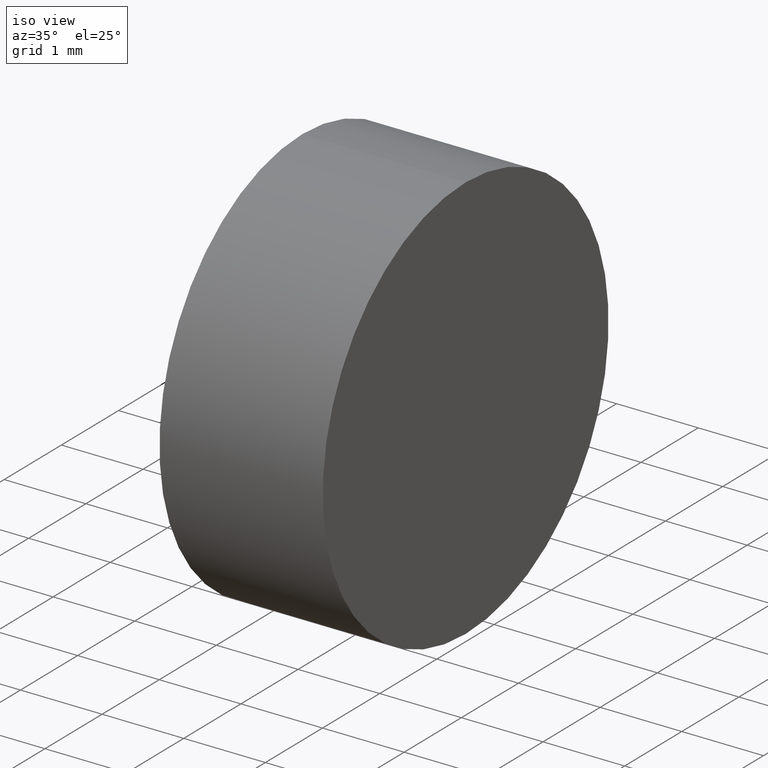
[diagram: clean part render]
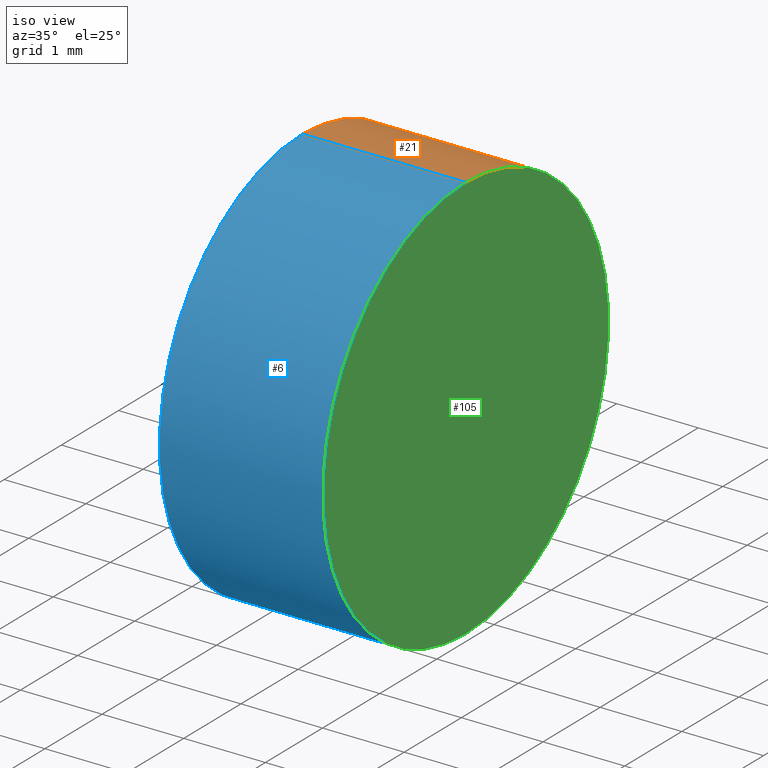
[diagram: same view with three faces highlighted in distinct colors, each labeled with its STEP entity id]
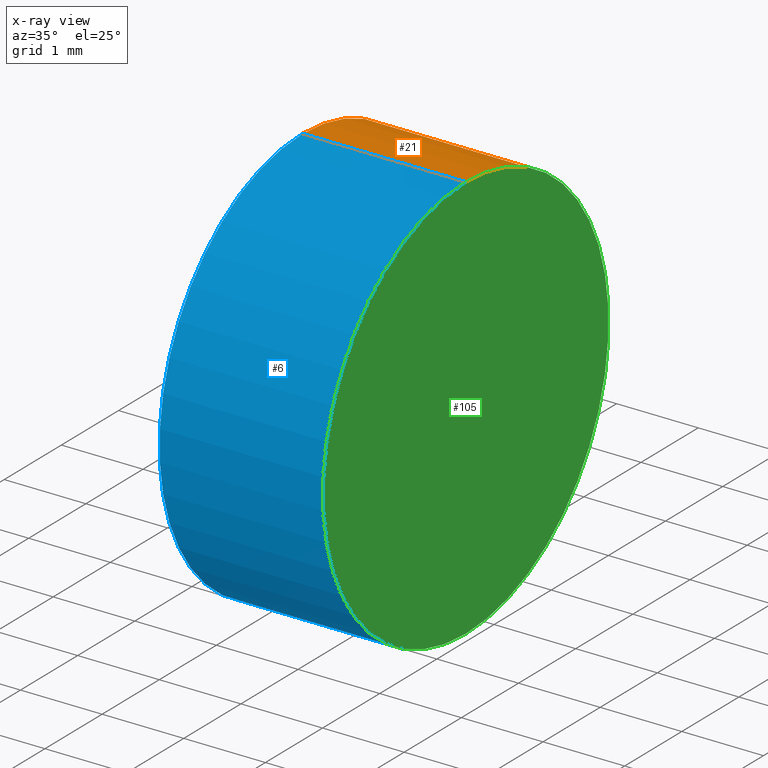
[diagram: x-ray of the same camera — body ghosted, the three highlighted faces saturated]
A machine part, iso view with three faces highlighted in distinct colors.
The next image is the same camera in x-ray (body ghosted, the three faces saturated) — at least one of them is partly hidden behind the body in this view.
Their STEP definitions:

[orange] entity #21 — the highlighted cylindrical surface (partial cylindrical patch) has radius 2.5 mm, axis along (-1, -0, -0).
#5 = DIRECTION ( 'NONE',  ( -1.000000000000000000, -0.0000000000000000000, -0.0000000000000000000 ) ) ;
#9 = EDGE_LOOP ( 'NONE', ( #76, #65, #67, #57 ) ) ;
#12 = DIRECTION ( 'NONE',  ( -1.000000000000000000, -0.0000000000000000000, -0.0000000000000000000 ) ) ;
#16 = CARTESIAN_POINT ( 'NONE',  ( 52.03142809851220100, 15.45863586980308400, 0.0000000000000000000 ) ) ;
#17 = DIRECTION ( 'NONE',  ( -1.000000000000000000, -0.0000000000000000000, -0.0000000000000000000 ) ) ;
#18 = VECTOR ( 'NONE', #133, 1000.000000000000000 ) ;
#20 = CIRCLE ( 'NONE', #85, 2.499999999999996900 ) ;
#21 = ADVANCED_FACE ( 'NONE', ( #23 ), #72, .T. ) ;
#23 = FACE_OUTER_BOUND ( 'NONE', #9, .T. ) ;
#25 = VECTOR ( 'NONE', #5, 1000.000000000000000 ) ;
#30 = CARTESIAN_POINT ( 'NONE',  ( 50.80016039852321100, 15.45863586980308400, 2.499999999999996900 ) ) ;
#31 = DIRECTION ( 'NONE',  ( 0.0000000000000000000, 0.0000000000000000000, 1.000000000000000000 ) ) ;
#39 = VERTEX_POINT ( 'NONE', #94 ) ;
#49 = CARTESIAN_POINT ( 'NONE',  ( 50.80016039852321100, 15.45863586980308400, -2.499999999999996900 ) ) ;
#54 = CARTESIAN_POINT ( 'NONE',  ( 54.03142809851220800, 15.45863586980308400, 0.0000000000000000000 ) ) ;
#57 = ORIENTED_EDGE ( 'NONE', *, *, #116, .F. ) ;
#61 = EDGE_CURVE ( 'NONE', #121, #91, #20, .T. ) ;
#62 = DIRECTION ( 'NONE',  ( 0.0000000000000000000, 0.0000000000000000000, 1.000000000000000000 ) ) ;
#65 = ORIENTED_EDGE ( 'NONE', *, *, #66, .T. ) ;
#66 = EDGE_CURVE ( 'NONE', #39, #91, #70, .T. ) ;
#67 = ORIENTED_EDGE ( 'NONE', *, *, #61, .F. ) ;
#69 = EDGE_CURVE ( 'NONE', #123, #39, #127, .T. ) ;
#70 = LINE ( 'NONE', #49, #18 ) ;
#72 = CYLINDRICAL_SURFACE ( 'NONE', #113, 2.499999999999996900 ) ;
#75 = CARTESIAN_POINT ( 'NONE',  ( 52.03142809851220100, 15.45863586980308400, 2.499999999999996900 ) ) ;
#76 = ORIENTED_EDGE ( 'NONE', *, *, #69, .T. ) ;
#80 = LINE ( 'NONE', #30, #25 ) ;
#82 = DIRECTION ( 'NONE',  ( -1.000000000000000000, -0.0000000000000000000, -0.0000000000000000000 ) ) ;
#85 = AXIS2_PLACEMENT_3D ( 'NONE', #16, #17, #100 ) ;
#91 = VERTEX_POINT ( 'NONE', #122 ) ;
#94 = CARTESIAN_POINT ( 'NONE',  ( 54.03142809851220800, 15.45863586980308400, -2.499999999999996900 ) ) ;
#100 = DIRECTION ( 'NONE',  ( 0.0000000000000000000, 0.0000000000000000000, 1.000000000000000000 ) ) ;
#106 = CARTESIAN_POINT ( 'NONE',  ( 50.80016039852321100, 15.45863586980308400, 0.0000000000000000000 ) ) ;
#109 = AXIS2_PLACEMENT_3D ( 'NONE', #54, #12, #62 ) ;
#112 = CARTESIAN_POINT ( 'NONE',  ( 54.03142809851220800, 15.45863586980308400, 2.499999999999996900 ) ) ;
#113 = AXIS2_PLACEMENT_3D ( 'NONE', #106, #82, #31 ) ;
#116 = EDGE_CURVE ( 'NONE', #123, #121, #80, .T. ) ;
#121 = VERTEX_POINT ( 'NONE', #75 ) ;
#122 = CARTESIAN_POINT ( 'NONE',  ( 52.03142809851220100, 15.45863586980308400, -2.499999999999996900 ) ) ;
#123 = VERTEX_POINT ( 'NONE', #112 ) ;
#127 = CIRCLE ( 'NONE', #109, 2.499999999999996900 ) ;
#133 = DIRECTION ( 'NONE',  ( -1.000000000000000000, -0.0000000000000000000, -0.0000000000000000000 ) ) ;

[blue] entity #6 — the highlighted cylindrical surface (partial cylindrical patch) has radius 2.5 mm, axis along (-1, -0, -0).
#5 = DIRECTION ( 'NONE',  ( -1.000000000000000000, -0.0000000000000000000, -0.0000000000000000000 ) ) ;
#6 = ADVANCED_FACE ( 'NONE', ( #42 ), #102, .T. ) ;
#7 = ORIENTED_EDGE ( 'NONE', *, *, #40, .T. ) ;
#14 = ORIENTED_EDGE ( 'NONE', *, *, #116, .T. ) ;
#18 = VECTOR ( 'NONE', #133, 1000.000000000000000 ) ;
#22 = CARTESIAN_POINT ( 'NONE',  ( 54.03142809851220800, 15.45863586980308400, 0.0000000000000000000 ) ) ;
#25 = VECTOR ( 'NONE', #5, 1000.000000000000000 ) ;
#27 = ORIENTED_EDGE ( 'NONE', *, *, #93, .F. ) ;
#29 = DIRECTION ( 'NONE',  ( -1.000000000000000000, -0.0000000000000000000, -0.0000000000000000000 ) ) ;
#30 = CARTESIAN_POINT ( 'NONE',  ( 50.80016039852321100, 15.45863586980308400, 2.499999999999996900 ) ) ;
#32 = DIRECTION ( 'NONE',  ( 0.0000000000000000000, 0.0000000000000000000, 1.000000000000000000 ) ) ;
#39 = VERTEX_POINT ( 'NONE', #94 ) ;
#40 = EDGE_CURVE ( 'NONE', #39, #123, #50, .T. ) ;
#41 = CARTESIAN_POINT ( 'NONE',  ( 50.80016039852321100, 15.45863586980308400, 0.0000000000000000000 ) ) ;
#42 = FACE_OUTER_BOUND ( 'NONE', #104, .T. ) ;
#49 = CARTESIAN_POINT ( 'NONE',  ( 50.80016039852321100, 15.45863586980308400, -2.499999999999996900 ) ) ;
#50 = CIRCLE ( 'NONE', #101, 2.499999999999996900 ) ;
#51 = ORIENTED_EDGE ( 'NONE', *, *, #66, .F. ) ;
#58 = DIRECTION ( 'NONE',  ( 0.0000000000000000000, 0.0000000000000000000, 1.000000000000000000 ) ) ;
#66 = EDGE_CURVE ( 'NONE', #39, #91, #70, .T. ) ;
#70 = LINE ( 'NONE', #49, #18 ) ;
#75 = CARTESIAN_POINT ( 'NONE',  ( 52.03142809851220100, 15.45863586980308400, 2.499999999999996900 ) ) ;
#78 = AXIS2_PLACEMENT_3D ( 'NONE', #41, #117, #84 ) ;
#80 = LINE ( 'NONE', #30, #25 ) ;
#84 = DIRECTION ( 'NONE',  ( 0.0000000000000000000, 0.0000000000000000000, 1.000000000000000000 ) ) ;
#91 = VERTEX_POINT ( 'NONE', #122 ) ;
#92 = CARTESIAN_POINT ( 'NONE',  ( 52.03142809851220100, 15.45863586980308400, 0.0000000000000000000 ) ) ;
#93 = EDGE_CURVE ( 'NONE', #91, #121, #107, .T. ) ;
#94 = CARTESIAN_POINT ( 'NONE',  ( 54.03142809851220800, 15.45863586980308400, -2.499999999999996900 ) ) ;
#96 = AXIS2_PLACEMENT_3D ( 'NONE', #92, #29, #58 ) ;
#97 = DIRECTION ( 'NONE',  ( -1.000000000000000000, -0.0000000000000000000, -0.0000000000000000000 ) ) ;
#101 = AXIS2_PLACEMENT_3D ( 'NONE', #22, #97, #32 ) ;
#102 = CYLINDRICAL_SURFACE ( 'NONE', #78, 2.499999999999996900 ) ;
#104 = EDGE_LOOP ( 'NONE', ( #51, #7, #14, #27 ) ) ;
#107 = CIRCLE ( 'NONE', #96, 2.499999999999996900 ) ;
#112 = CARTESIAN_POINT ( 'NONE',  ( 54.03142809851220800, 15.45863586980308400, 2.499999999999996900 ) ) ;
#116 = EDGE_CURVE ( 'NONE', #123, #121, #80, .T. ) ;
#117 = DIRECTION ( 'NONE',  ( -1.000000000000000000, -0.0000000000000000000, -0.0000000000000000000 ) ) ;
#121 = VERTEX_POINT ( 'NONE', #75 ) ;
#122 = CARTESIAN_POINT ( 'NONE',  ( 52.03142809851220100, 15.45863586980308400, -2.499999999999996900 ) ) ;
#123 = VERTEX_POINT ( 'NONE', #112 ) ;
#133 = DIRECTION ( 'NONE',  ( -1.000000000000000000, -0.0000000000000000000, -0.0000000000000000000 ) ) ;

[green] entity #105 — the highlighted planar face has unit normal (-1, 0, -0).
#12 = DIRECTION ( 'NONE',  ( -1.000000000000000000, -0.0000000000000000000, -0.0000000000000000000 ) ) ;
#19 = DIRECTION ( 'NONE',  ( -1.000000000000000000, 0.0000000000000000000, -0.0000000000000000000 ) ) ;
#22 = CARTESIAN_POINT ( 'NONE',  ( 54.03142809851220800, 15.45863586980308400, 0.0000000000000000000 ) ) ;
#32 = DIRECTION ( 'NONE',  ( 0.0000000000000000000, 0.0000000000000000000, 1.000000000000000000 ) ) ;
#37 = ORIENTED_EDGE ( 'NONE', *, *, #40, .F. ) ;
#39 = VERTEX_POINT ( 'NONE', #94 ) ;
#40 = EDGE_CURVE ( 'NONE', #39, #123, #50, .T. ) ;
#50 = CIRCLE ( 'NONE', #101, 2.499999999999996900 ) ;
#54 = CARTESIAN_POINT ( 'NONE',  ( 54.03142809851220800, 15.45863586980308400, 0.0000000000000000000 ) ) ;
#60 = EDGE_LOOP ( 'NONE', ( #135, #37 ) ) ;
#62 = DIRECTION ( 'NONE',  ( 0.0000000000000000000, 0.0000000000000000000, 1.000000000000000000 ) ) ;
#68 = PLANE ( 'NONE',  #140 ) ;
#69 = EDGE_CURVE ( 'NONE', #123, #39, #127, .T. ) ;
#89 = FACE_OUTER_BOUND ( 'NONE', #60, .T. ) ;
#94 = CARTESIAN_POINT ( 'NONE',  ( 54.03142809851220800, 15.45863586980308400, -2.499999999999996900 ) ) ;
#97 = DIRECTION ( 'NONE',  ( -1.000000000000000000, -0.0000000000000000000, -0.0000000000000000000 ) ) ;
#98 = DIRECTION ( 'NONE',  ( -0.0000000000000000000, 0.0000000000000000000, 1.000000000000000000 ) ) ;
#101 = AXIS2_PLACEMENT_3D ( 'NONE', #22, #97, #32 ) ;
#105 = ADVANCED_FACE ( 'NONE', ( #89 ), #68, .F. ) ;
#109 = AXIS2_PLACEMENT_3D ( 'NONE', #54, #12, #62 ) ;
#112 = CARTESIAN_POINT ( 'NONE',  ( 54.03142809851220800, 15.45863586980308400, 2.499999999999996900 ) ) ;
#123 = VERTEX_POINT ( 'NONE', #112 ) ;
#127 = CIRCLE ( 'NONE', #109, 2.499999999999996900 ) ;
#135 = ORIENTED_EDGE ( 'NONE', *, *, #69, .F. ) ;
#138 = CARTESIAN_POINT ( 'NONE',  ( 54.03142809851220800, 17.95863586980308200, 0.0000000000000000000 ) ) ;
#140 = AXIS2_PLACEMENT_3D ( 'NONE', #138, #19, #98 ) ;